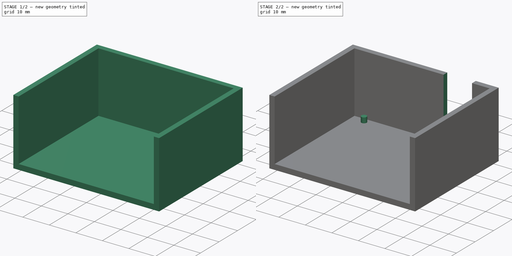
[diagram: build sequence overview — one tinted view per stage of 2, left to right]
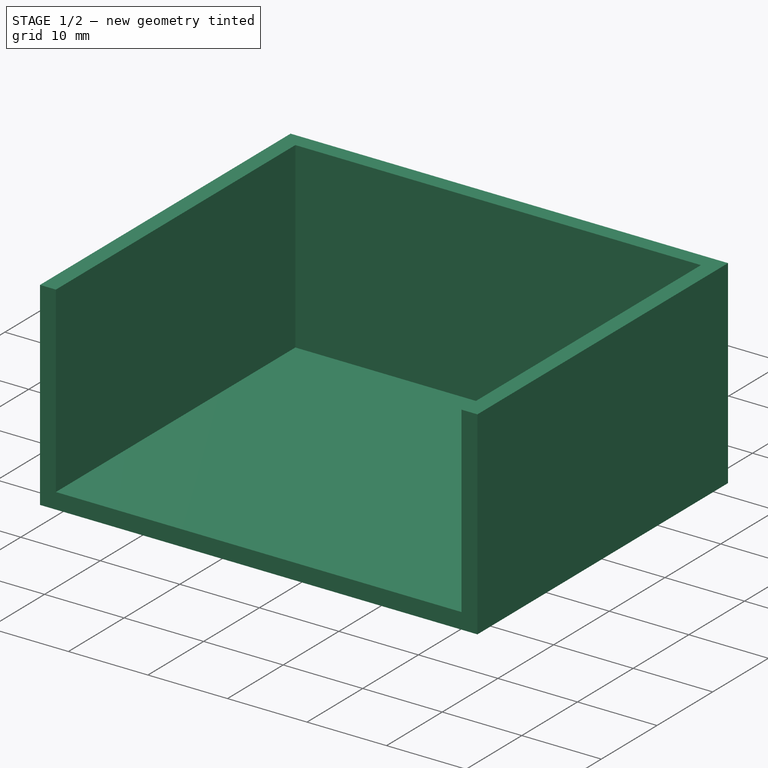
[diagram: stage 1 of 2 — iso view after this stage's code; geometry added in this stage tinted green]
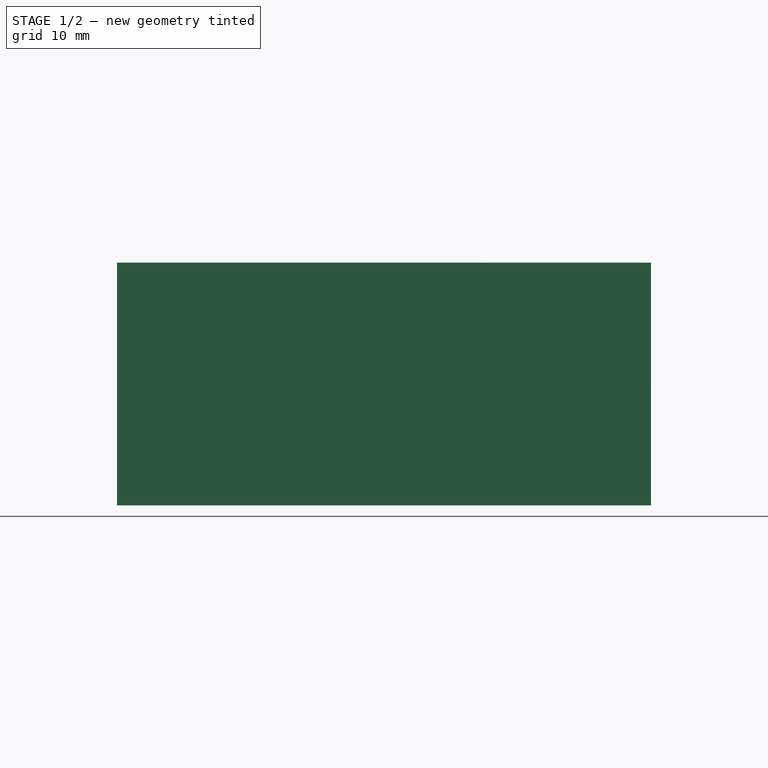
[diagram: stage 1 of 2 — front view after this stage's code; geometry added in this stage tinted green]
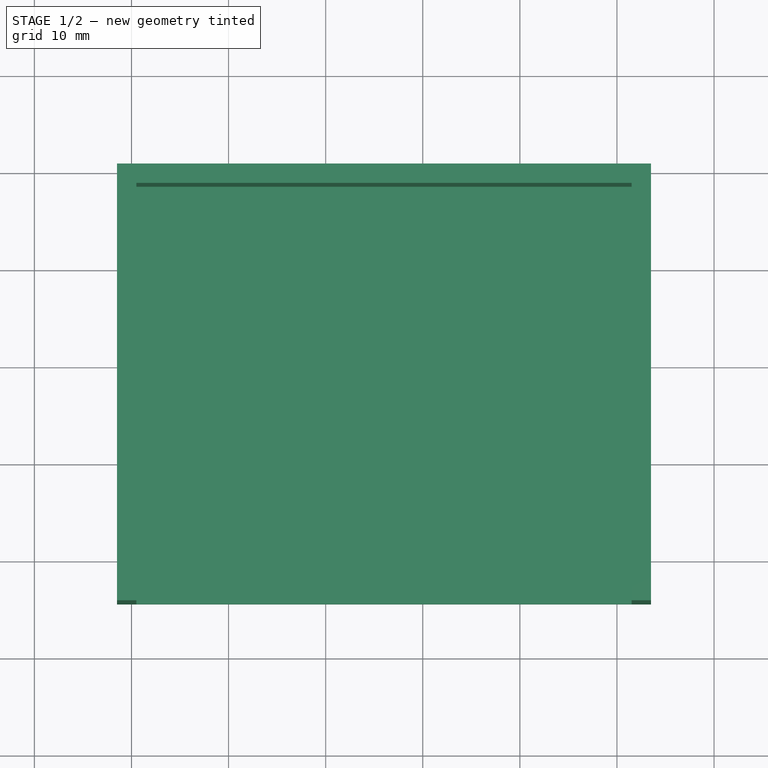
[diagram: stage 1 of 2 — top view after this stage's code; geometry added in this stage tinted green]
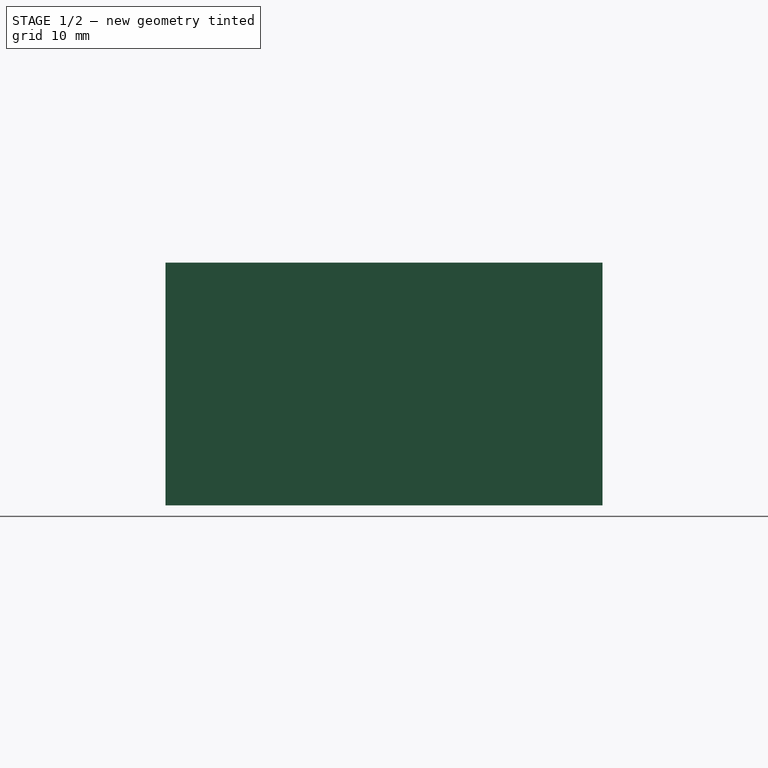
[diagram: stage 1 of 2 — right view after this stage's code; geometry added in this stage tinted green]
FCSTD DOCUMENT  (FreeCAD 0.16R6705 (Git))
Label: relay_case
License: All rights reserved
LicenseURL: http://en.wikipedia.org/wiki/All_rights_reserved
objects: Sketcher::SketchObject×4, PartDesign::Pad×2, PartDesign::Pocket×2
note: 12 computed .brp shape members not serialized (recipe doc carries the construction recipe); baked Part::Feature solids carry a one-line shape summary decoded from their .brp

FEATURE [Sketcher::SketchObject] Sketch
  sketch-geometry (4):
    g0: LineSegment StartX=-41.4928 StartY=10.5929 StartZ=0 EndX=13.5072 EndY=10.5929 EndZ=0
    g1: LineSegment StartX=13.5072 StartY=10.5929 StartZ=0 EndX=13.5072 EndY=-34.4071 EndZ=0
    g2: LineSegment StartX=13.5072 StartY=-34.4071 StartZ=0 EndX=-41.4928 EndY=-34.4071 EndZ=0
    g3: LineSegment StartX=-41.4928 StartY=-34.4071 StartZ=0 EndX=-41.4928 EndY=10.5929 EndZ=0
  constraints (10):
    c: Coincident(g0,g1)
    c: Coincident(g1,g2)
    c: Coincident(g2,g3)
    c: Coincident(g3,g0)
    c: Horizontal(g0)
    c: Horizontal(g2)
    c: Vertical(g1)
    c: Vertical(g3)
    c: DistanceX(g0,g0) = 55
    c: DistanceY(g1,g1) = 45
FEATURE [PartDesign::Pad] Pad
  Length = 25
  Length2 = 100
  Sketch = -> Sketch
  Type = 0
FEATURE [Sketcher::SketchObject] Sketch001
  ExternalGeometry = -> [Pad]
  Placement = pos=(0,0,25) rot=(0,0,1;0rad)
  Support = -> Pad [Face6]
  sketch-geometry (4):
    g0: LineSegment StartX=-39.4928 StartY=8.59287 StartZ=0 EndX=11.5072 EndY=8.59287 EndZ=0
    g1: LineSegment StartX=11.5072 StartY=8.59287 StartZ=0 EndX=11.5072 EndY=-39.0866 EndZ=0
    g2: LineSegment StartX=11.5072 StartY=-39.0866 StartZ=0 EndX=-39.4928 EndY=-39.0866 EndZ=0
    g3: LineSegment StartX=-39.4928 StartY=-39.0866 StartZ=0 EndX=-39.4928 EndY=8.59287 EndZ=0
  constraints (11):
    c: Coincident(g0,g1)
    c: Coincident(g1,g2)
    c: Coincident(g2,g3)
    c: Coincident(g3,g0)
    c: Horizontal(g0)
    c: Horizontal(g2)
    c: Vertical(g1)
    c: Vertical(g3)
    c: DistanceX(g-4,g0) = 2
    c: DistanceY(g0,g-4) = 2
    c: DistanceX(g0,g-5) = 2
FEATURE [PartDesign::Pocket] Pocket
  Length = 23
  Sketch = -> Sketch001
  Type = 0
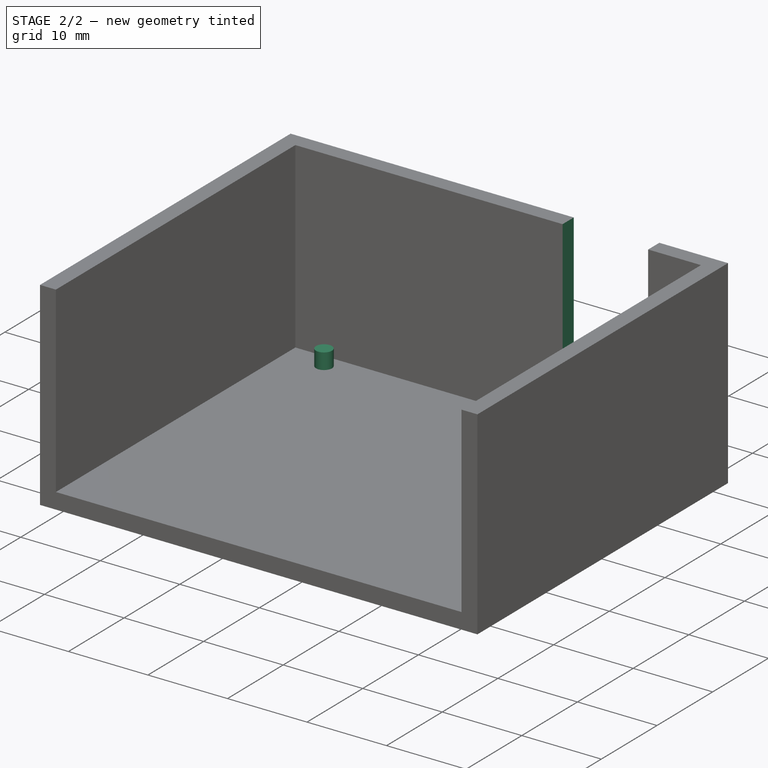
[diagram: stage 2 of 2 — iso view after this stage's code; geometry added in this stage tinted green]
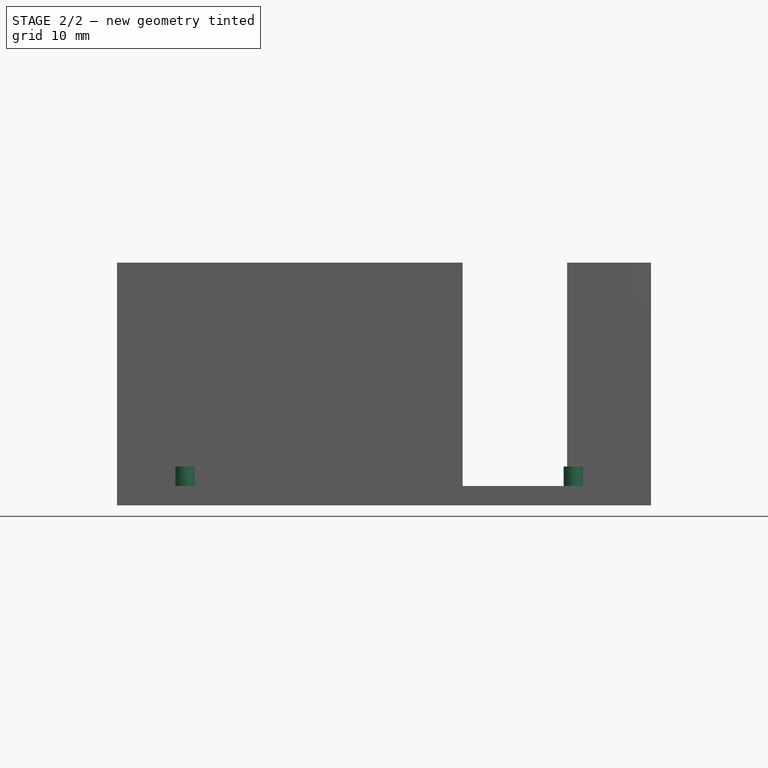
[diagram: stage 2 of 2 — front view after this stage's code; geometry added in this stage tinted green]
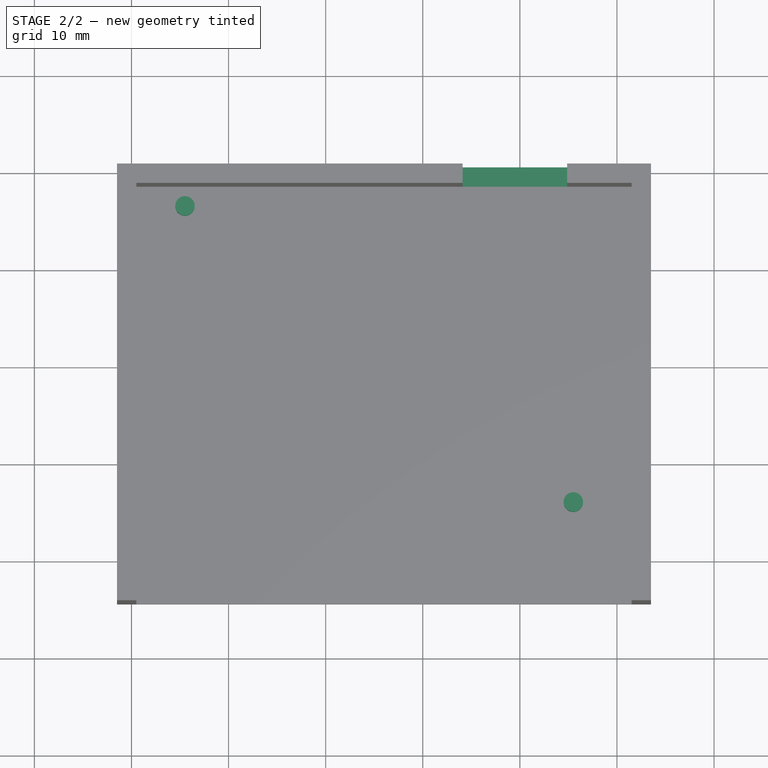
[diagram: stage 2 of 2 — top view after this stage's code; geometry added in this stage tinted green]
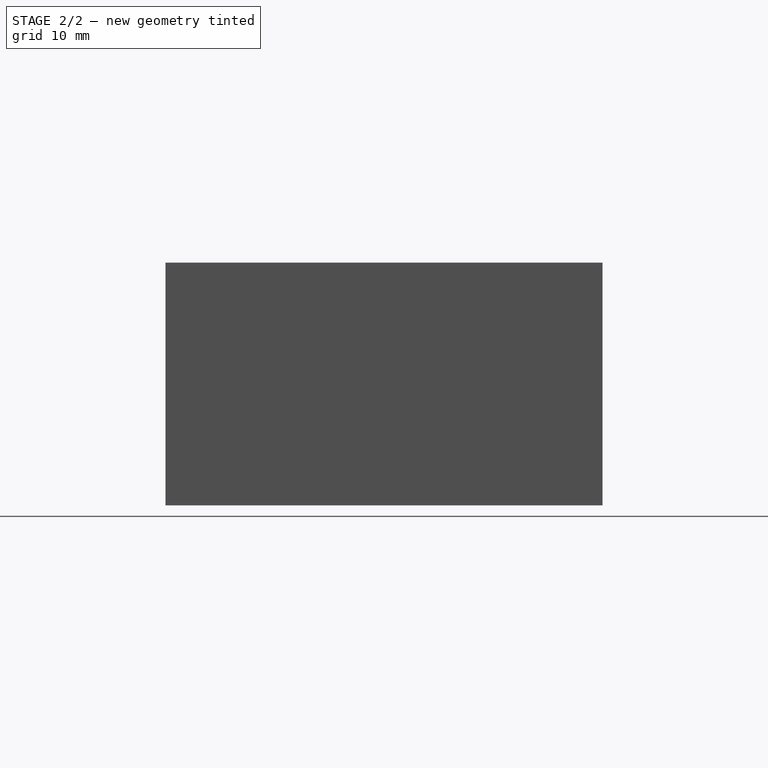
[diagram: stage 2 of 2 — right view after this stage's code; geometry added in this stage tinted green]
FEATURE [Sketcher::SketchObject] Sketch002
  ExternalGeometry = -> [Pocket]
  Placement = pos=(0,0,2) rot=(0,0,1;0rad)
  Support = -> Pocket [Face10]
  sketch-geometry (2):
    g0: Circle CenterX=-34.4928 CenterY=6.59287 CenterZ=0 NormalX=0 NormalY=0 NormalZ=1 Radius=1
    g1: Circle CenterX=5.50721 CenterY=-23.9071 CenterZ=0 NormalX=0 NormalY=0 NormalZ=1 Radius=1
  constraints (6):
    c: Radius(g0) = 1
    c: Radius(g1) = 1
    c: DistanceX(g0,g1) = 40
    c: DistanceY(g1,g0) = 30.5
    c: DistanceX(g-4,g0) = 5
    c: DistanceY(g0,g-4) = 2
FEATURE [PartDesign::Pad] Pad001
  Length = 2
  Length2 = 100
  Sketch = -> Sketch002
  Type = 0
FEATURE [Sketcher::SketchObject] Sketch003
  ExternalGeometry = -> [Pad001]
  Placement = pos=(0,8.59287,0) rot=(1,0,0;1.5708rad)
  Support = -> Pad001 [Face8]
  sketch-geometry (4):
    g0: LineSegment StartX=-5.89279 StartY=27.9034 StartZ=0 EndX=4.86721 EndY=27.9034 EndZ=0
    g1: LineSegment StartX=4.86721 StartY=27.9034 StartZ=0 EndX=4.86721 EndY=2 EndZ=0
    g2: LineSegment StartX=4.86721 StartY=2 StartZ=0 EndX=-5.89279 EndY=2 EndZ=0
    g3: LineSegment StartX=-5.89279 StartY=2 StartZ=0 EndX=-5.89279 EndY=27.9034 EndZ=0
  constraints (11):
    c: Coincident(g0,g1)
    c: Coincident(g1,g2)
    c: Coincident(g2,g3)
    c: Coincident(g3,g0)
    c: Horizontal(g0)
    c: Horizontal(g2)
    c: Vertical(g1)
    c: Vertical(g3)
    c: DistanceY(g-4,g2) = 0
    c: DistanceX(g-5,g2) = 27.6
    c: DistanceX(g1,g-3) = 1.64
FEATURE [PartDesign::Pocket] Pocket001
  Length = 5
  Sketch = -> Sketch003
  Type = 0
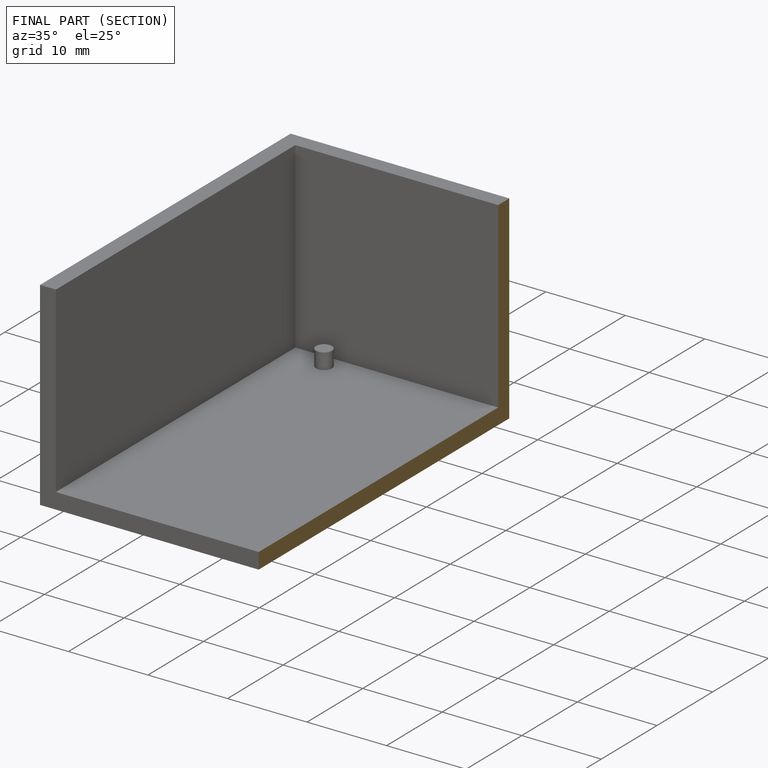
[diagram: finished part — half-section view (interior)]
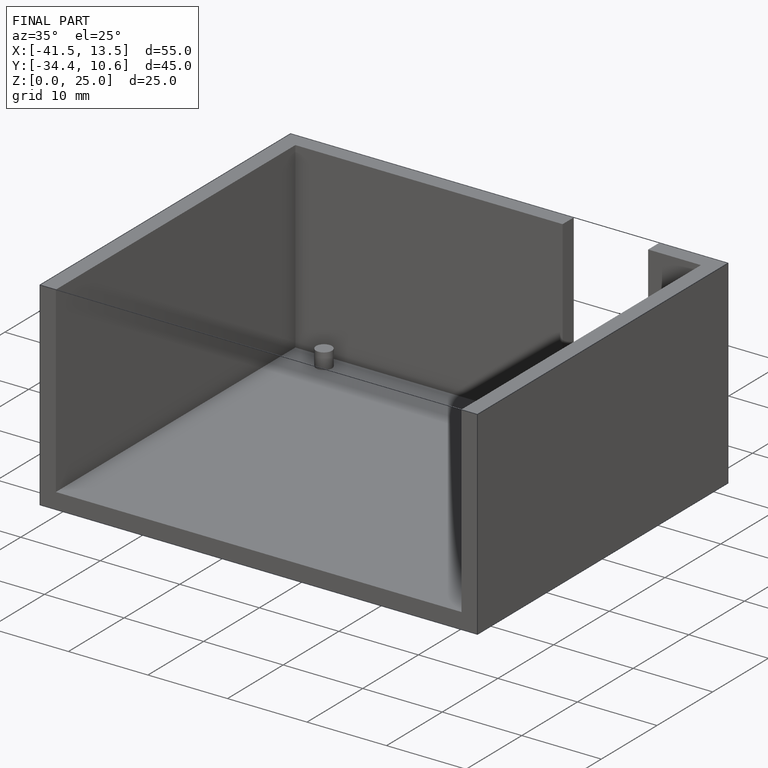
[diagram: finished part — iso view with bounding-box wireframe]
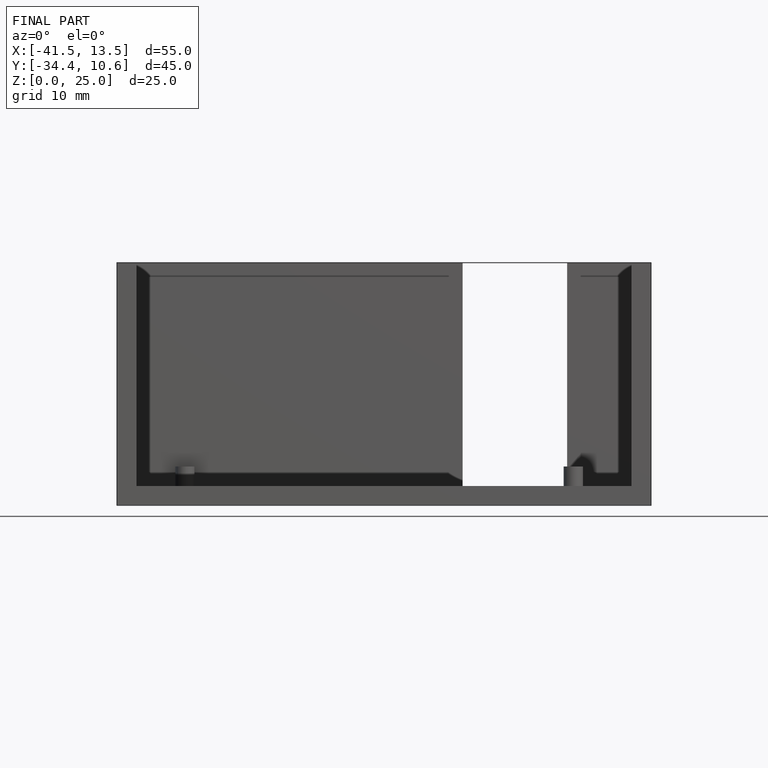
[diagram: finished part — front view with bounding-box wireframe]
